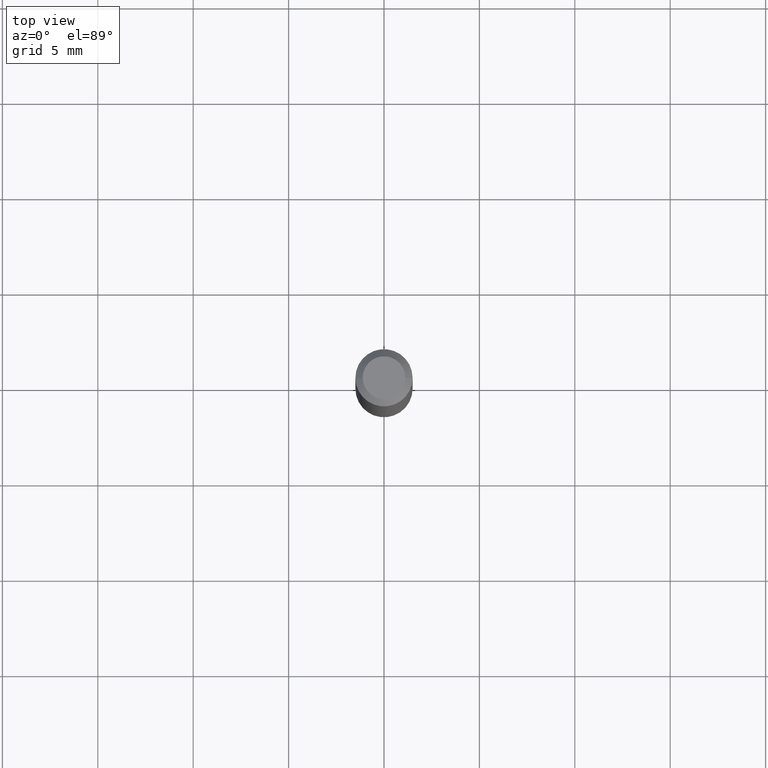
[diagram: clean part render]
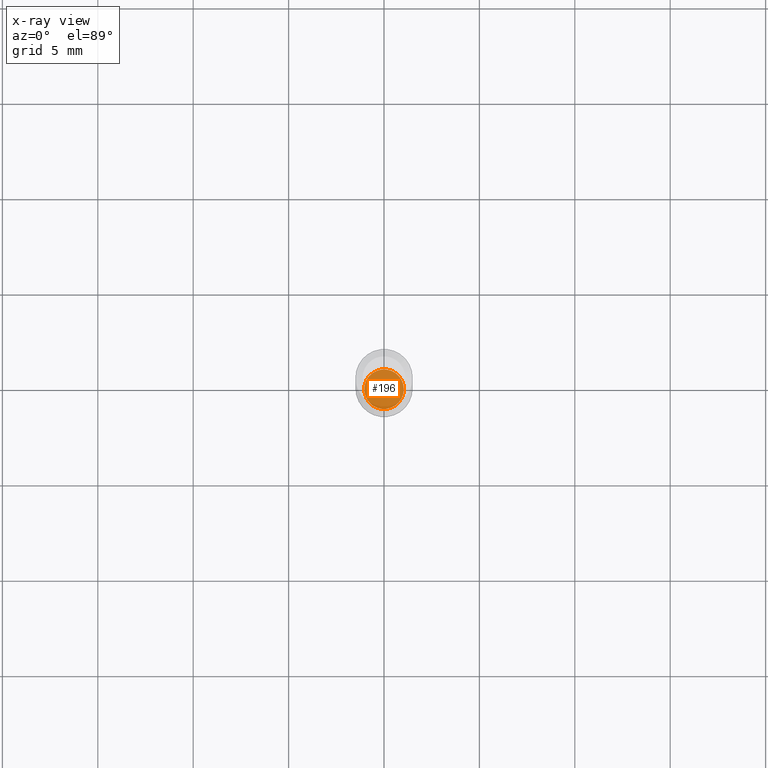
[diagram: x-ray — body ghosted, one internal face saturated and labeled with its STEP entity id]
A machine part, top view, then the same camera in x-ray: the body is ghosted and one INTERNAL B-rep face — a face not visible from any outside direction — is saturated and labeled: STEP entity #196.
In plain terms, the highlighted planar face has unit normal (-0, 0, 1).
Its self-contained STEP definition (entity closure, byte-faithful):
#12 = AXIS2_PLACEMENT_3D ( 'NONE', #128, #286, #248 ) ;
#19 = DIRECTION ( 'NONE',  ( -2.438088387897960049E-29, 3.491481338843145188E-15, 1.000000000000000000 ) ) ;
#30 = CIRCLE ( 'NONE', #12, 0.04084999999999999742 ) ;
#65 = CARTESIAN_POINT ( 'NONE',  ( 3.364720530430130200E-29, -4.803929174114285214E-15, -1.375900000000000123 ) ) ;
#99 = VERTEX_POINT ( 'NONE', #325 ) ;
#128 = CARTESIAN_POINT ( 'NONE',  ( 3.364720530430130200E-29, -4.803929174114285214E-15, -1.375900000000000123 ) ) ;
#173 = DIRECTION ( 'NONE',  ( -2.445468806185136597E-29, 3.491481338843145583E-15, 1.000000000000000000 ) ) ;
#176 = ORIENTED_EDGE ( 'NONE', *, *, #436, .F. ) ;
#196 = ADVANCED_FACE ( 'NONE', ( #376 ), #236, .F. ) ;
#209 = AXIS2_PLACEMENT_3D ( 'NONE', #456, #19, #240 ) ;
#234 = AXIS2_PLACEMENT_3D ( 'NONE', #65, #173, #320 ) ;
#236 = PLANE ( 'NONE',  #209 ) ;
#240 = DIRECTION ( 'NONE',  ( 1.000000000000000000, -6.982962677686265922E-15, 4.876176775795935793E-29 ) ) ;
#242 = CARTESIAN_POINT ( 'NONE',  ( 0.04084999999999999742, -5.089183199497769152E-15, -1.375900000000000123 ) ) ;
#248 = DIRECTION ( 'NONE',  ( 1.000000000000000000, -6.982962677686261189E-15, 0.000000000000000000 ) ) ;
#275 = ORIENTED_EDGE ( 'NONE', *, *, #360, .F. ) ;
#286 = DIRECTION ( 'NONE',  ( -2.445468806185136597E-29, 3.491481338843145583E-15, 1.000000000000000000 ) ) ;
#320 = DIRECTION ( 'NONE',  ( 1.000000000000000000, -6.982962677686261189E-15, 0.000000000000000000 ) ) ;
#325 = CARTESIAN_POINT ( 'NONE',  ( -0.04084999999999999742, -4.511023239382173499E-15, -1.375900000000000123 ) ) ;
#360 = EDGE_CURVE ( 'NONE', #99, #388, #30, .T. ) ;
#376 = FACE_OUTER_BOUND ( 'NONE', #429, .T. ) ;
#388 = VERTEX_POINT ( 'NONE', #242 ) ;
#425 = CIRCLE ( 'NONE', #234, 0.04084999999999999742 ) ;
#429 = EDGE_LOOP ( 'NONE', ( #176, #275 ) ) ;
#436 = EDGE_CURVE ( 'NONE', #388, #99, #425, .T. ) ;
#456 = CARTESIAN_POINT ( 'NONE',  ( 3.364720530430130200E-29, -4.803929174114285214E-15, -1.375900000000000123 ) ) ;